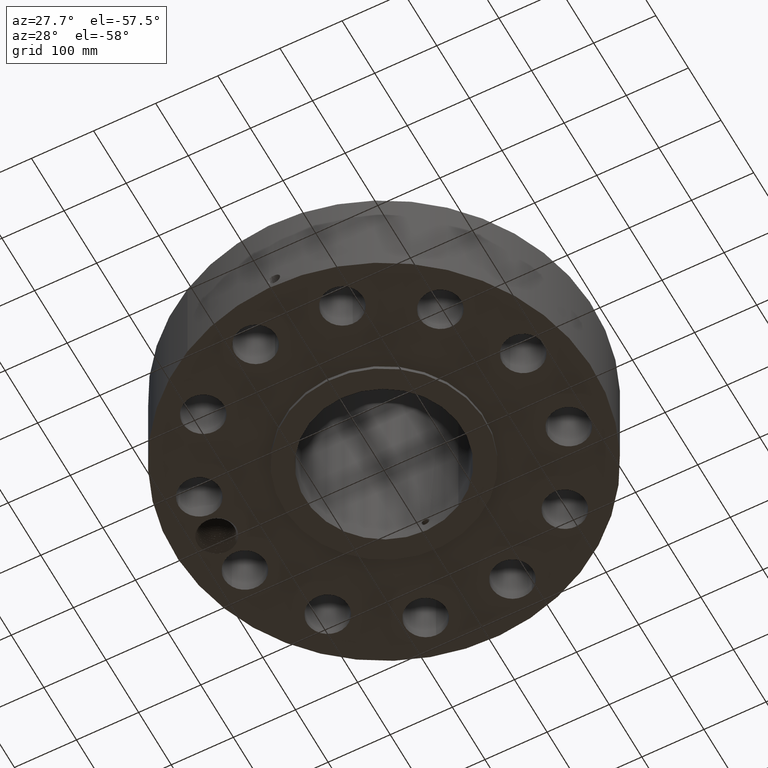
[diagram: clean part render]
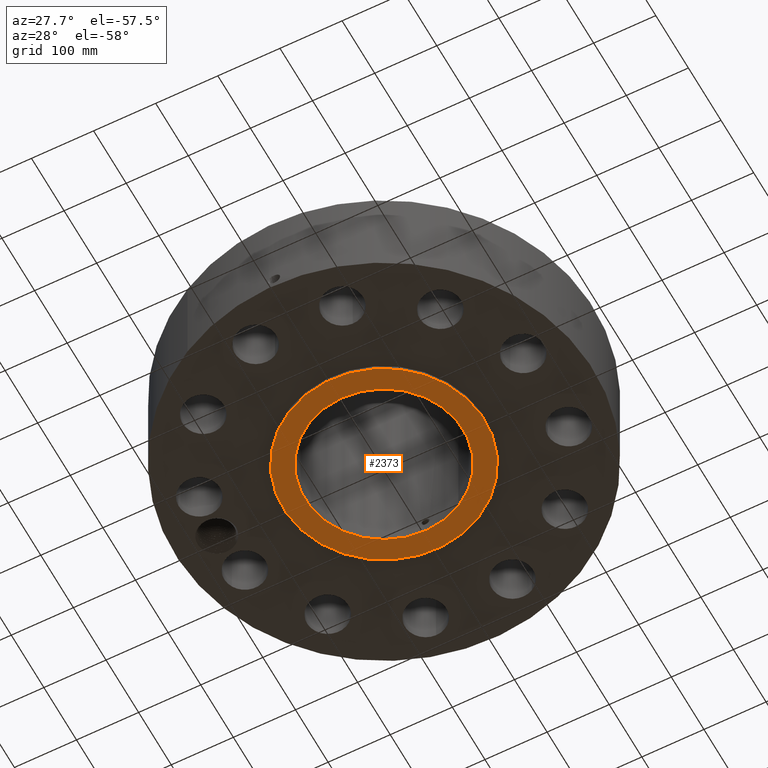
[diagram: same view with one face highlighted and labeled with its STEP entity id]
A machine part, auxiliary view. The second image highlights one B-rep face of the part: STEP entity #2373.
In plain terms, the highlighted planar face has unit normal (0, 0, -1).
Its self-contained STEP definition (entity closure, byte-faithful):
#1284=AXIS2_PLACEMENT_3D('Circle Axis2P3D',#1282,#1283,$) ;
#1310=AXIS2_PLACEMENT_3D('Circle Axis2P3D',#1308,#1309,$) ;
#2349=AXIS2_PLACEMENT_3D('Plane Axis2P3D',#2346,#2347,#2348) ;
#2357=AXIS2_PLACEMENT_3D('Circle Axis2P3D',#2355,#2356,$) ;
#2366=AXIS2_PLACEMENT_3D('Circle Axis2P3D',#2364,#2365,$) ;
#1282=CARTESIAN_POINT('Axis2P3D Location',(0.,0.,1.1189649382E-015)) ;
#1286=CARTESIAN_POINT('Vertex',(3.05633780861,5.59458883207,1.1189649382E-015)) ;
#1288=CARTESIAN_POINT('Vertex',(-3.05633780861,-5.59458883207,1.1189649382E-015)) ;
#1308=CARTESIAN_POINT('Axis2P3D Location',(0.,0.,1.1189649382E-015)) ;
#2346=CARTESIAN_POINT('Axis2P3D Location',(0.,5.01000000002,0.)) ;
#2355=CARTESIAN_POINT('Axis2P3D Location',(0.,0.,0.)) ;
#2359=CARTESIAN_POINT('Vertex',(2.40192194842,4.39668863509,-1.34275792585E-014)) ;
#2361=CARTESIAN_POINT('Vertex',(-2.40192194842,-4.39668863509,-1.34275792585E-014)) ;
#2364=CARTESIAN_POINT('Axis2P3D Location',(0.,0.,0.)) ;
#1283=DIRECTION('Axis2P3D Direction',(0.,0.,-0.0393700787402)) ;
#1309=DIRECTION('Axis2P3D Direction',(0.,0.,-0.0393700787402)) ;
#2347=DIRECTION('Axis2P3D Direction',(0.,0.,-0.0393700787402)) ;
#2348=DIRECTION('Axis2P3D XDirection',(0.0393700787402,0.,0.)) ;
#2356=DIRECTION('Axis2P3D Direction',(0.,0.,-0.0393700787402)) ;
#2365=DIRECTION('Axis2P3D Direction',(0.,0.,-0.0393700787402)) ;
#2352=ORIENTED_EDGE('',*,*,#1312,.T.) ;
#2353=ORIENTED_EDGE('',*,*,#1290,.T.) ;
#2370=ORIENTED_EDGE('',*,*,#2363,.F.) ;
#2371=ORIENTED_EDGE('',*,*,#2368,.F.) ;
#2372=FACE_BOUND('',#2369,.T.) ;
#2373=ADVANCED_FACE('PartBody',(#2354,#2372),#2350,.T.) ;
#1285=CIRCLE('generated circle',#1284,6.37500000003) ;
#1311=CIRCLE('generated circle',#1310,6.37500000003) ;
#2358=CIRCLE('generated circle',#2357,5.01000000002) ;
#2367=CIRCLE('generated circle',#2366,5.01000000002) ;
#1290=EDGE_CURVE('',#1287,#1289,#1285,.T.) ;
#1312=EDGE_CURVE('',#1289,#1287,#1311,.T.) ;
#2363=EDGE_CURVE('',#2360,#2362,#2358,.T.) ;
#2368=EDGE_CURVE('',#2362,#2360,#2367,.T.) ;
#2351=EDGE_LOOP('',(#2352,#2353)) ;
#2369=EDGE_LOOP('',(#2370,#2371)) ;
#2354=FACE_OUTER_BOUND('',#2351,.T.) ;
#2350=PLANE('',#2349) ;
#1287=VERTEX_POINT('',#1286) ;
#1289=VERTEX_POINT('',#1288) ;
#2360=VERTEX_POINT('',#2359) ;
#2362=VERTEX_POINT('',#2361) ;